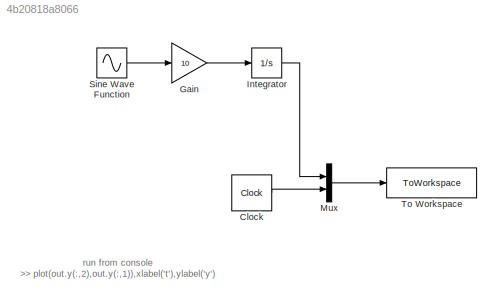
MODEL slx_4b20818a8066
KIND model
CONFIG AbsTol = auto
CONFIG EnableMultiTasking = off
CONFIG FixedStep = auto
CONFIG MaxStep = auto
CONFIG MinStep = auto
CONFIG RelTol = 1e-3
CONFIG SampleTimeConstraint = Unconstrained
CONFIG SolverName = VariableStepAuto
CONFIG StartTime = 0.0
CONFIG StopTime = 13.0
BLOCK [Clock] Clock
BLOCK [Gain] Gain
  Gain = 10
BLOCK [Integrator] Integrator
BLOCK [Mux] Mux
  DisplayOption = bar
  Inputs = 2
BLOCK [Sin] Sine Wave Function
  SampleTime = 0
BLOCK [ToWorkspace] To Workspace
  FixptAsFi = on
  MaxDataPoints = inf
  SampleTime = -1
  VariableName = y
ANNOTATION (root): run from console >> plot(out.y(:,2),out.y(:,1)),xlabel('t'),ylabel('y')
LINE Clock:1 -> Mux:2
LINE Gain:1 -> Integrator:1
LINE Integrator:1 -> Mux:1
LINE Mux:1 -> To Workspace:1
LINE Sine Wave Function:1 -> Gain:1
